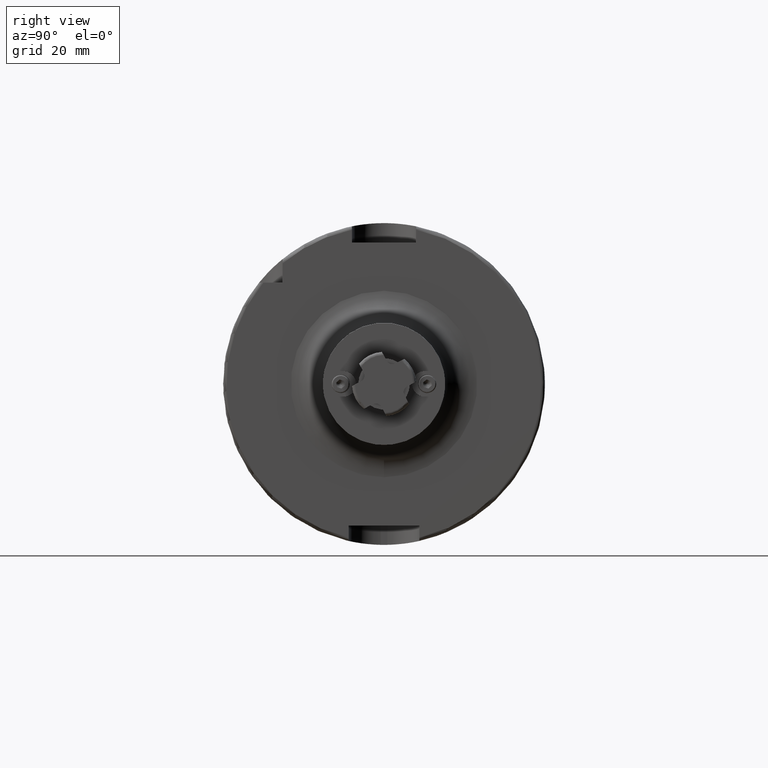
[diagram: clean part render]
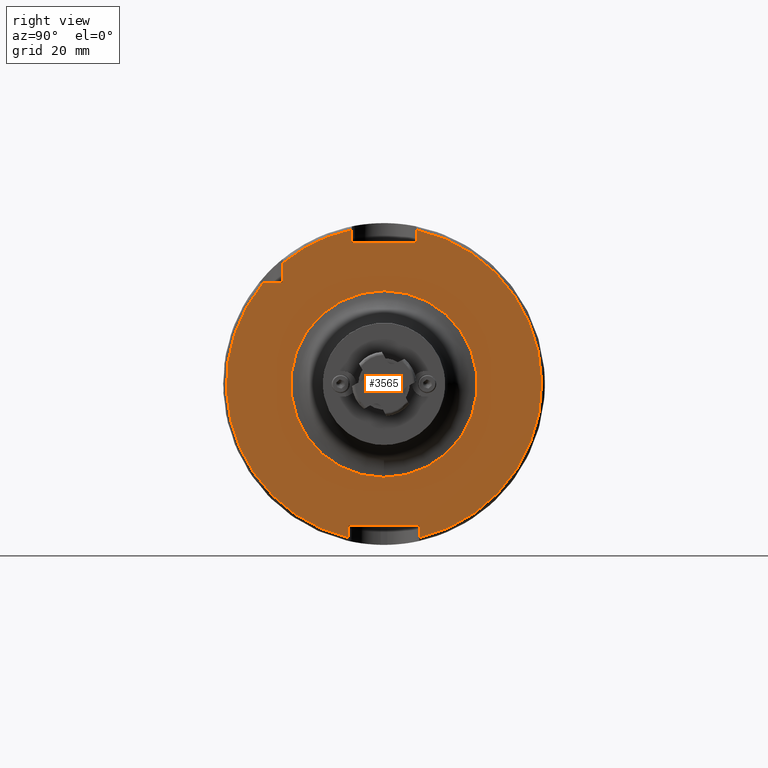
[diagram: same view with one face highlighted and labeled with its STEP entity id]
A machine part, right view. The second image highlights one B-rep face of the part: STEP entity #3565.
In plain terms, the highlighted planar face has unit normal (1, 0, 0).
Its self-contained STEP definition (entity closure, byte-faithful):
#677=FACE_BOUND('',#1030,.T.);
#704=PLANE('',#3933);
#846=FACE_OUTER_BOUND('',#1029,.T.);
#1029=EDGE_LOOP('',(#2682,#2683,#2684,#2685,#2686,#2687,#2688,#2689,#2690,
#2691,#2692));
#1030=EDGE_LOOP('',(#2693));
#1238=LINE('',#5582,#1428);
#1239=LINE('',#5586,#1429);
#1240=LINE('',#5588,#1430);
#1241=LINE('',#5590,#1431);
#1242=LINE('',#5594,#1432);
#1243=LINE('',#5596,#1433);
#1244=LINE('',#5598,#1434);
#1245=LINE('',#5601,#1435);
#1428=VECTOR('',#4476,10.);
#1429=VECTOR('',#4479,10.);
#1430=VECTOR('',#4480,10.);
#1431=VECTOR('',#4481,10.);
#1432=VECTOR('',#4484,10.);
#1433=VECTOR('',#4485,10.);
#1434=VECTOR('',#4486,10.);
#1435=VECTOR('',#4489,10.);
#1613=CIRCLE('',#3932,29.);
#1614=CIRCLE('',#3934,49.);
#1615=CIRCLE('',#3935,49.);
#1616=CIRCLE('',#3936,49.);
#1848=VERTEX_POINT('',#5576);
#1849=VERTEX_POINT('',#5580);
#1850=VERTEX_POINT('',#5581);
#1851=VERTEX_POINT('',#5583);
#1852=VERTEX_POINT('',#5585);
#1853=VERTEX_POINT('',#5587);
#1854=VERTEX_POINT('',#5589);
#1855=VERTEX_POINT('',#5591);
#1856=VERTEX_POINT('',#5593);
#1857=VERTEX_POINT('',#5595);
#1858=VERTEX_POINT('',#5597);
#1859=VERTEX_POINT('',#5599);
#2173=EDGE_CURVE('',#1848,#1848,#1613,.T.);
#2174=EDGE_CURVE('',#1849,#1850,#1238,.T.);
#2175=EDGE_CURVE('',#1850,#1851,#1614,.T.);
#2176=EDGE_CURVE('',#1851,#1852,#1239,.T.);
#2177=EDGE_CURVE('',#1852,#1853,#1240,.T.);
#2178=EDGE_CURVE('',#1853,#1854,#1241,.T.);
#2179=EDGE_CURVE('',#1854,#1855,#1615,.T.);
#2180=EDGE_CURVE('',#1855,#1856,#1242,.T.);
#2181=EDGE_CURVE('',#1856,#1857,#1243,.T.);
#2182=EDGE_CURVE('',#1857,#1858,#1244,.T.);
#2183=EDGE_CURVE('',#1858,#1859,#1616,.T.);
#2184=EDGE_CURVE('',#1859,#1849,#1245,.T.);
#2682=ORIENTED_EDGE('',*,*,#2174,.T.);
#2683=ORIENTED_EDGE('',*,*,#2175,.T.);
#2684=ORIENTED_EDGE('',*,*,#2176,.T.);
#2685=ORIENTED_EDGE('',*,*,#2177,.T.);
#2686=ORIENTED_EDGE('',*,*,#2178,.T.);
#2687=ORIENTED_EDGE('',*,*,#2179,.T.);
#2688=ORIENTED_EDGE('',*,*,#2180,.T.);
#2689=ORIENTED_EDGE('',*,*,#2181,.T.);
#2690=ORIENTED_EDGE('',*,*,#2182,.T.);
#2691=ORIENTED_EDGE('',*,*,#2183,.T.);
#2692=ORIENTED_EDGE('',*,*,#2184,.T.);
#2693=ORIENTED_EDGE('',*,*,#2173,.F.);
#3565=ADVANCED_FACE('',(#846,#677),#704,.T.);
#3932=AXIS2_PLACEMENT_3D('',#5578,#4472,#4473);
#3933=AXIS2_PLACEMENT_3D('',#5579,#4474,#4475);
#3934=AXIS2_PLACEMENT_3D('',#5584,#4477,#4478);
#3935=AXIS2_PLACEMENT_3D('',#5592,#4482,#4483);
#3936=AXIS2_PLACEMENT_3D('',#5600,#4487,#4488);
#4472=DIRECTION('center_axis',(1.,0.,0.));
#4473=DIRECTION('ref_axis',(0.,-1.,-1.22464679914735E-16));
#4474=DIRECTION('center_axis',(1.,0.,0.));
#4475=DIRECTION('ref_axis',(0.,0.,-1.));
#4476=DIRECTION('',(0.,-1.,0.));
#4477=DIRECTION('center_axis',(1.,0.,0.));
#4478=DIRECTION('ref_axis',(0.,0.,-1.));
#4479=DIRECTION('',(0.,0.,1.));
#4480=DIRECTION('',(0.,1.,0.));
#4481=DIRECTION('',(0.,0.,-1.));
#4482=DIRECTION('center_axis',(1.,0.,0.));
#4483=DIRECTION('ref_axis',(0.,0.,-1.));
#4484=DIRECTION('',(0.,0.,-1.));
#4485=DIRECTION('',(0.,-1.,0.));
#4486=DIRECTION('',(0.,0.,1.));
#4487=DIRECTION('center_axis',(1.,0.,0.));
#4488=DIRECTION('ref_axis',(0.,0.,-1.));
#4489=DIRECTION('',(0.,0.,-1.));
#5576=CARTESIAN_POINT('',(29.,-3.55147571752732E-15,-29.));
#5578=CARTESIAN_POINT('Origin',(29.,0.,0.));
#5579=CARTESIAN_POINT('Origin',(29.,0.,0.));
#5580=CARTESIAN_POINT('',(29.,-31.5,31.5));
#5581=CARTESIAN_POINT('',(29.,-37.5333185316726,31.5));
#5582=CARTESIAN_POINT('',(29.,-18.25,31.5));
#5583=CARTESIAN_POINT('',(29.,-11.,-47.7493455452533));
#5584=CARTESIAN_POINT('Origin',(29.,0.,0.));
#5585=CARTESIAN_POINT('',(29.,-11.,-44.));
#5586=CARTESIAN_POINT('',(29.,-11.,-22.));
#5587=CARTESIAN_POINT('',(29.,11.,-44.));
#5588=CARTESIAN_POINT('',(29.,-5.55111512312578E-16,-44.));
#5589=CARTESIAN_POINT('',(29.,11.,-47.7493455452533));
#5590=CARTESIAN_POINT('',(29.,11.,-22.));
#5591=CARTESIAN_POINT('',(29.,10.,47.9687398208458));
#5592=CARTESIAN_POINT('Origin',(29.,0.,0.));
#5593=CARTESIAN_POINT('',(29.,10.,44.));
#5594=CARTESIAN_POINT('',(29.,10.,22.));
#5595=CARTESIAN_POINT('',(29.,-10.,44.));
#5596=CARTESIAN_POINT('',(29.,0.,44.));
#5597=CARTESIAN_POINT('',(29.,-10.,47.9687398208458));
#5598=CARTESIAN_POINT('',(29.,-10.,22.));
#5599=CARTESIAN_POINT('',(29.,-31.5,37.5333185316726));
#5600=CARTESIAN_POINT('Origin',(29.,0.,0.));
#5601=CARTESIAN_POINT('',(29.,-31.5,15.75));